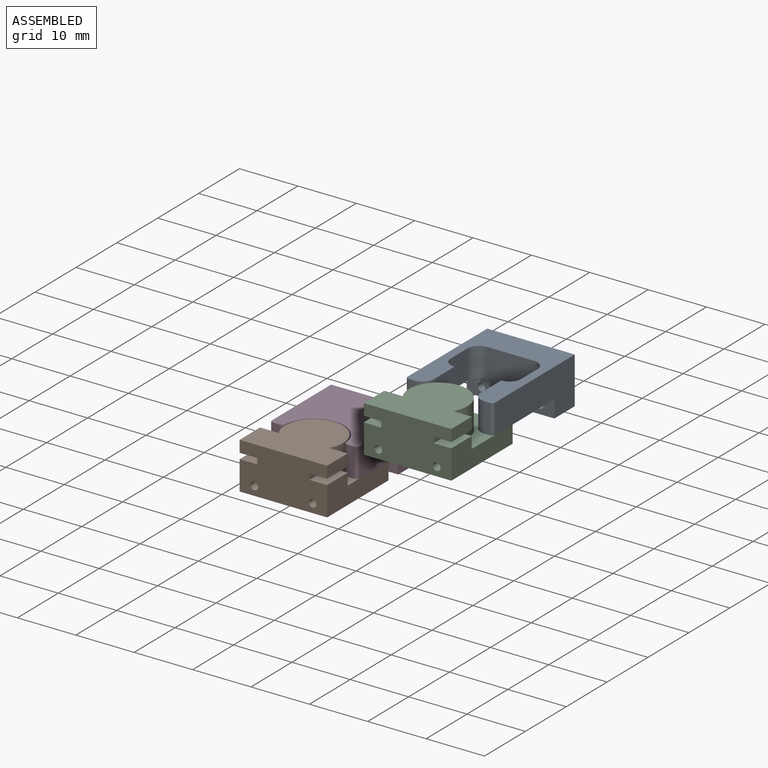
[diagram: assembled view]
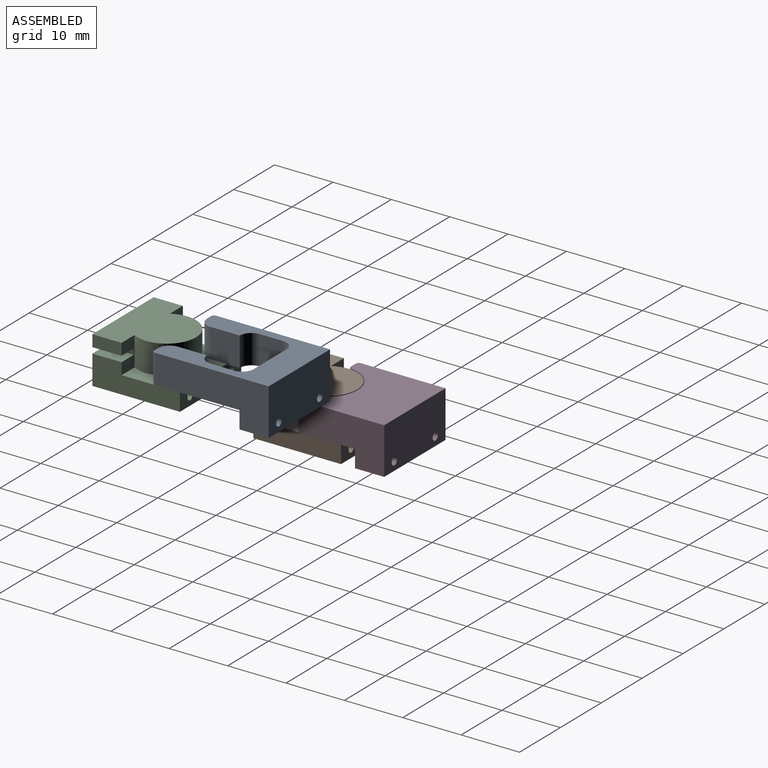
[diagram: assembled view, second angle]
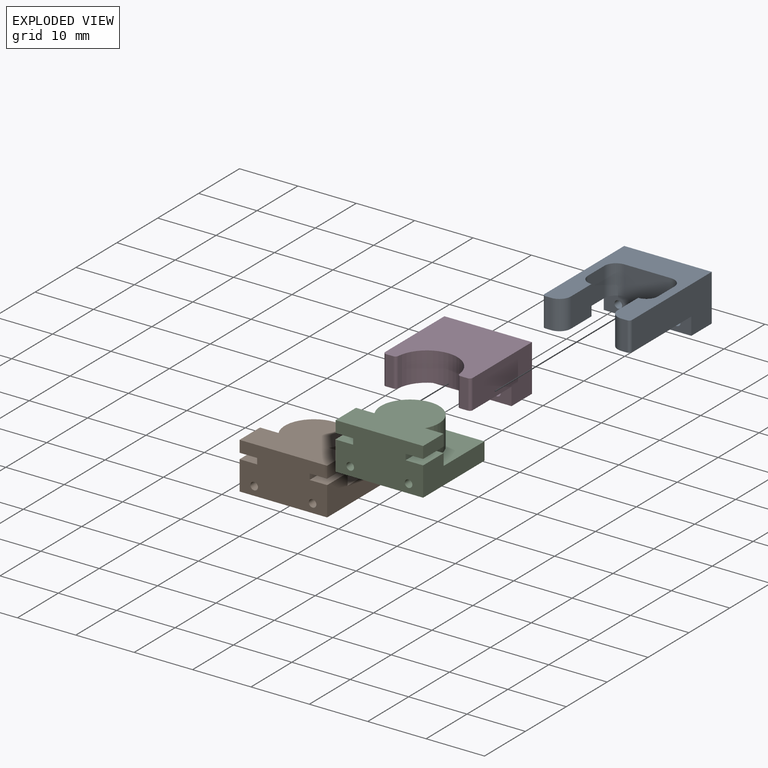
[diagram: exploded view]
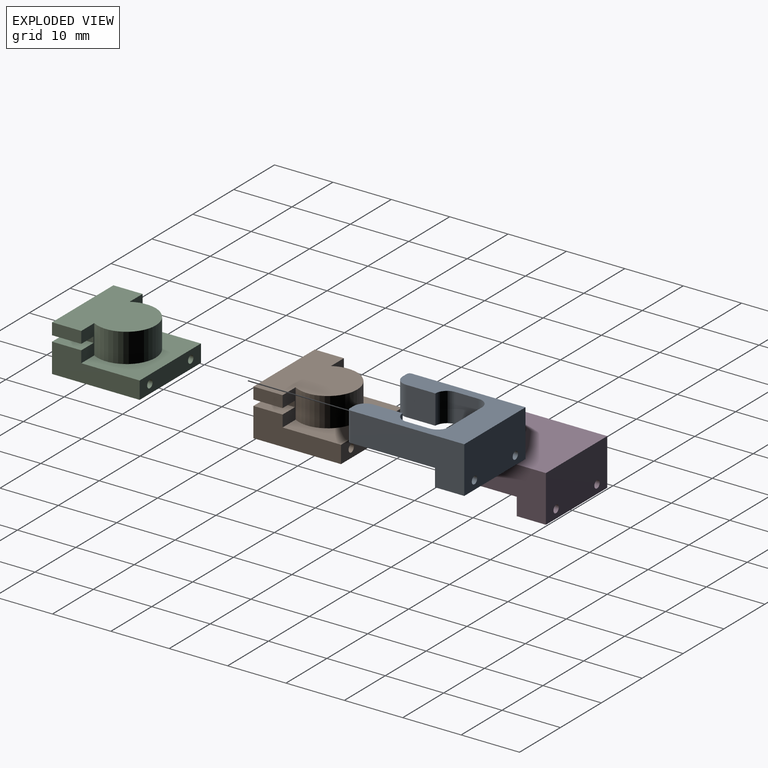
[diagram: exploded view, second angle]
ASSEMBLY  parts=4 mates=2
PART A: 24 faces, bbox 20x15x8 mm
  f0: plane 15x3.5mm, normal (0,0,-1), area 37.3mm2, adj f5,f6,f7,f8,f9,f10,f11,f12
  f1: plane 5x1mm, normal (-1,0,0), area 5mm2, adj f2,f18,f19,f20
  f2: cylinder r=0.5mm len=5mm, axis (0,0,-1), area 3.9mm2, adj f1,f3,f19,f20
  f3: plane 19.5x8mm, normal (0,-1,0), area 112.5mm2, adj f2,f4,f13,f19,f20,f21
  f4: plane 15x8mm, normal (1,0,0), area 117.3mm2, adj f3,f5,f19,f21,f22,f23
  f5: plane 19.5x8mm, normal (0,1,0), area 112.5mm2, adj f0,f4,f6,f13,f19,f21
  f6: cylinder r=0.5mm len=5mm, axis (0,0,-1), area 3.9mm2, adj f0,f5,f7,f19
  f7: plane 5x1mm, normal (-1,0,0), area 5mm2, adj f0,f6,f8,f19
  f8: cylinder r=2mm len=5mm, axis (0,0,-1), area 15.7mm2, adj f0,f7,f9,f19
  f9: plane 5x5mm, normal (0,-1,0), area 25mm2, adj f0,f8,f10,f19
  f10: cylinder r=2mm len=5mm, axis (0,0,-1), area 15.7mm2, adj f0,f9,f11,f19
  f11: plane 5x4mm, normal (0,-1,0), area 20mm2, adj f0,f10,f12,f19
  f12: cylinder r=2mm len=5mm, axis (0,0,-1), area 15.7mm2, adj f0,f11,f13,f19
  f13: plane 15x8mm, normal (-1,0,0), area 82.3mm2, adj f0,f3,f5,f12,f14,f19,f20,f21
  f14: cylinder r=2mm len=5mm, axis (0,0,-1), area 15.7mm2, adj f13,f15,f19,f20
  f15: plane 5x4mm, normal (0,1,0), area 20mm2, adj f14,f16,f19,f20
  f16: cylinder r=2mm len=5mm, axis (0,0,-1), area 15.7mm2, adj f15,f17,f19,f20
  f17: plane 5x5mm, normal (0,1,0), area 25mm2, adj f16,f18,f19,f20
  f18: cylinder r=2mm len=5mm, axis (0,0,-1), area 15.7mm2, adj f1,f17,f19,f20
  f19: plane 20x15mm, normal (0,0,1), area 149.6mm2, adj f1,f2,f3,f4,f5,f6,f7,f8
  f20: plane 15x3.5mm, normal (0,0,-1), area 37.3mm2, adj f1,f2,f3,f13,f14,f15,f16,f17
  f21: plane 15x5mm, normal (0,0,-1), area 75mm2, adj f3,f4,f5,f13
  f22: cylinder r=0.65mm len=5mm, axis (1,0,0), area 20.4mm2, adj f4,f13
  f23: cylinder r=0.65mm len=5mm, axis (1,0,0), area 20.4mm2, adj f4,f13
PART B: 20 faces, bbox 15x15x8 mm
  f0: plane 5x2mm, normal (1,0,0), area 10mm2, adj f3,f6,f12,f17
  f1: plane 15x5mm, normal (-1,0,0), area 55mm2, adj f4,f6,f8,f9,f13,f14
  f2: cylinder r=5mm len=10mm, axis (0,0,-1), area 104.7mm2, adj f3,f9,f12,f13
  f3: plane 15x12.5mm, normal (0,0,1), area 138.2mm2, adj f0,f2,f6,f7,f12,f13
  f4: plane 15x3mm, normal (0,1,0), area 42.3mm2, adj f1,f5,f8,f9,f10,f11
  f5: plane 15x5mm, normal (1,0,0), area 55mm2, adj f4,f6,f8,f9,f12,f18
  f6: plane 15x8mm, normal (0,-1,0), area 111.3mm2, adj f0,f1,f3,f5,f7,f8,f10,f11
  f7: plane 5x2mm, normal (-1,0,0), area 10mm2, adj f3,f6,f13,f16
  f8: plane 15x15mm, normal (0,0,-1), area 225mm2, adj f1,f4,f5,f6
  f9: plane 15x10mm, normal (0,0,1), area 86.8mm2, adj f1,f2,f4,f5,f12,f13
  f10: cylinder r=0.65mm len=15mm, axis (0,1,0), area 61.3mm2, adj f4,f6
  f11: cylinder r=0.65mm len=15mm, axis (0,1,0), area 61.3mm2, adj f4,f6
  f12: plane 5x3.17mm, normal (0,1,0), area 12.8mm2, adj f0,f2,f3,f5,f9,f17,f18,f19
  f13: plane 5x3.17mm, normal (0,1,0), area 12.8mm2, adj f1,f2,f3,f7,f9,f14,f15,f16
  f14: plane 5x3mm, normal (0,0,1), area 15mm2, adj f1,f6,f13,f15
  f15: plane 5x1mm, normal (-1,0,0), area 5mm2, adj f6,f13,f14,f16
  f16: plane 5x3mm, normal (0,0,-1), area 15mm2, adj f6,f7,f13,f15
  f17: plane 5x3mm, normal (0,0,-1), area 15mm2, adj f0,f6,f12,f19
  f18: plane 5x3mm, normal (0,0,1), area 15mm2, adj f5,f6,f12,f19
  f19: plane 5x1mm, normal (1,0,0), area 5mm2, adj f6,f12,f17,f18
PART C: same geometry as B
PART D: 16 faces, bbox 15x15x8 mm
  f0: plane 15x10mm, normal (0,0,-1), area 106.5mm2, adj f1,f2,f3,f5,f6,f7,f8,f9
  f1: plane 5x1.27mm, normal (-1,0,0), area 6.4mm2, adj f0,f2,f10,f11
  f2: cylinder r=0.5mm len=5mm, axis (0,0,-1), area 3.9mm2, adj f0,f1,f3,f11
  f3: plane 14.5x8mm, normal (0,-1,0), area 87.5mm2, adj f0,f2,f4,f11,f12,f13
  f4: plane 15x8mm, normal (1,0,0), area 117.3mm2, adj f3,f5,f11,f13,f14,f15
  f5: plane 14.5x8mm, normal (0,1,0), area 87.5mm2, adj f0,f4,f6,f11,f12,f13
  f6: cylinder r=0.5mm len=5mm, axis (0,0,-1), area 3.9mm2, adj f0,f5,f7,f11
  f7: plane 5x1.27mm, normal (-1,0,0), area 6.4mm2, adj f0,f6,f8,f11
  f8: cylinder r=0.5mm len=5mm, axis (0,0,-1), area 3.7mm2, adj f0,f7,f9,f11
  f9: cylinder r=5.25mm len=10.46mm, axis (0,0,-1), area 77.9mm2, adj f0,f8,f10,f11
  f10: cylinder r=0.5mm len=5mm, axis (0,0,-1), area 3.7mm2, adj f0,f1,f9,f11
  f11: plane 15x15mm, normal (0,0,1), area 181.5mm2, adj f1,f2,f3,f4,f5,f6,f7,f8
  f12: plane 15x3mm, normal (-1,0,0), area 42.3mm2, adj f0,f3,f5,f13,f14,f15
  f13: plane 15x5mm, normal (0,0,-1), area 75mm2, adj f3,f4,f5,f12
  f14: cylinder r=0.65mm len=5mm, axis (1,0,0), area 20.4mm2, adj f4,f12
  f15: cylinder r=0.65mm len=5mm, axis (1,0,0), area 20.4mm2, adj f4,f12
PLACE A rot(axis=(0,0,1),90deg) t=(27.29,2.38,15.32)mm
PLACE B t=(0.05,8.2,-0.9)mm
PLACE C t=(27.29,-0.32,15.32)mm
PLACE D rot(axis=(0,0,1),90deg) t=(0.05,8.1,-0.9)mm
MATE slider A.f22 <-> C.f11  axis (0,-1,0) through (22.29,17.38,13.82)mm
MATE slider B.f11 <-> D.f14  axis (0,1,0) through (-4.95,15.7,-2.4)mm
